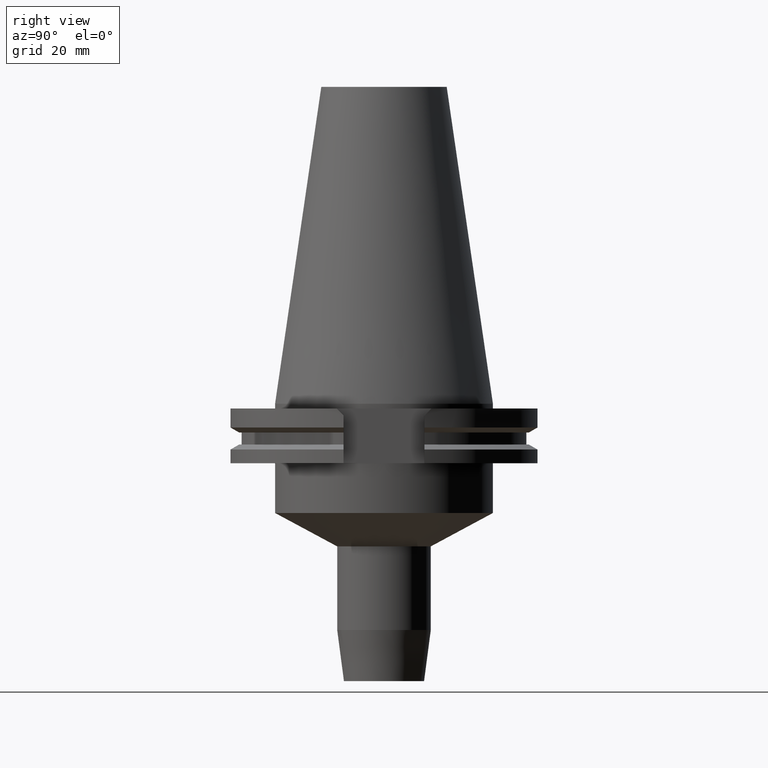
[diagram: clean part render]
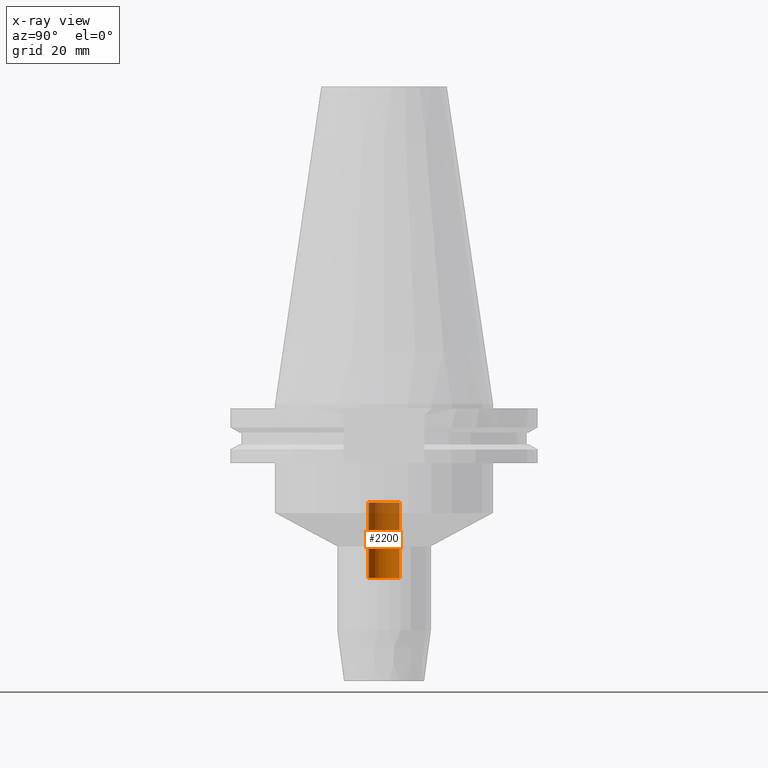
[diagram: x-ray — body ghosted, one internal face saturated and labeled with its STEP entity id]
A machine part, right view, then the same camera in x-ray: the body is ghosted and one INTERNAL B-rep face — a face not visible from any outside direction — is saturated and labeled: STEP entity #2200.
In plain terms, the highlighted cylindrical surface (edge-blend (fillet) strip) has radius 5 mm, axis along (0, 0, -1).
Its self-contained STEP definition (entity closure, byte-faithful):
#998=CARTESIAN_POINT('',(0.E0,2.585535554700E-14,-5.59E1));
#999=DIRECTION('',(0.E0,0.E0,-1.E0));
#1000=DIRECTION('',(0.E0,-1.E0,0.E0));
#1001=AXIS2_PLACEMENT_3D('',#998,#999,#1000);
#1030=DIRECTION('',(0.E0,0.E0,1.E0));
#1031=VECTOR('',#1030,2.42E1);
#1032=CARTESIAN_POINT('',(0.E0,-5.E0,-5.59E1));
#1033=LINE('',#1032,#1031);
#1037=DIRECTION('',(0.E0,0.E0,1.E0));
#1038=VECTOR('',#1037,2.42E1);
#1039=CARTESIAN_POINT('',(0.E0,5.E0,-5.59E1));
#1040=LINE('',#1039,#1038);
#1052=CARTESIAN_POINT('',(0.E0,2.585535554700E-14,-3.17E1));
#1053=DIRECTION('',(0.E0,0.E0,1.E0));
#1054=DIRECTION('',(0.E0,1.E0,0.E0));
#1055=AXIS2_PLACEMENT_3D('',#1052,#1053,#1054);
#1244=CARTESIAN_POINT('',(0.E0,-5.E0,-3.17E1));
#1245=CARTESIAN_POINT('',(0.E0,5.E0,-3.17E1));
#1246=VERTEX_POINT('',#1244);
#1247=VERTEX_POINT('',#1245);
#1248=CARTESIAN_POINT('',(0.E0,5.E0,-5.59E1));
#1249=VERTEX_POINT('',#1248);
#1250=CARTESIAN_POINT('',(0.E0,-5.E0,-5.59E1));
#1251=VERTEX_POINT('',#1250);
#2186=CARTESIAN_POINT('',(0.E0,2.585535554700E-14,1.11125E2));
#2187=DIRECTION('',(0.E0,0.E0,-1.E0));
#2188=DIRECTION('',(0.E0,-1.E0,0.E0));
#2189=AXIS2_PLACEMENT_3D('',#2186,#2187,#2188);
#2190=CYLINDRICAL_SURFACE('',#2189,5.E0);
#2192=ORIENTED_EDGE('',*,*,#2191,.F.);
#2193=ORIENTED_EDGE('',*,*,#2175,.F.);
#2195=ORIENTED_EDGE('',*,*,#2194,.T.);
#2197=ORIENTED_EDGE('',*,*,#2196,.F.);
#2198=EDGE_LOOP('',(#2192,#2193,#2195,#2197));
#2199=FACE_OUTER_BOUND('',#2198,.F.);
#1002=CIRCLE('',#1001,5.E0);
#1056=CIRCLE('',#1055,5.E0);
#2175=EDGE_CURVE('',#1251,#1249,#1002,.T.);
#2191=EDGE_CURVE('',#1249,#1247,#1040,.T.);
#2194=EDGE_CURVE('',#1251,#1246,#1033,.T.);
#2196=EDGE_CURVE('',#1247,#1246,#1056,.T.);
#2200=ADVANCED_FACE('',(#2199),#2190,.F.);